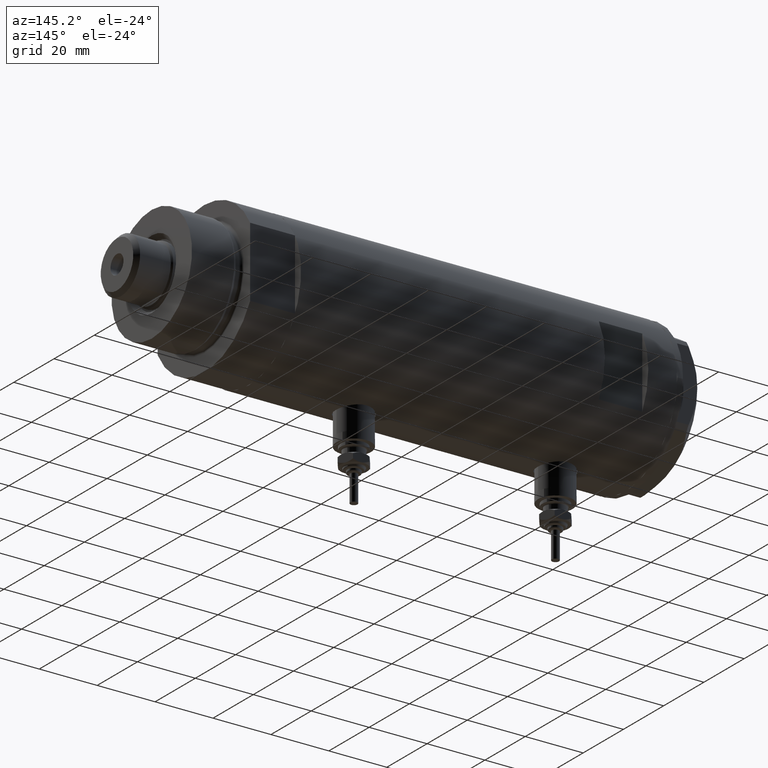
[diagram: clean part render]
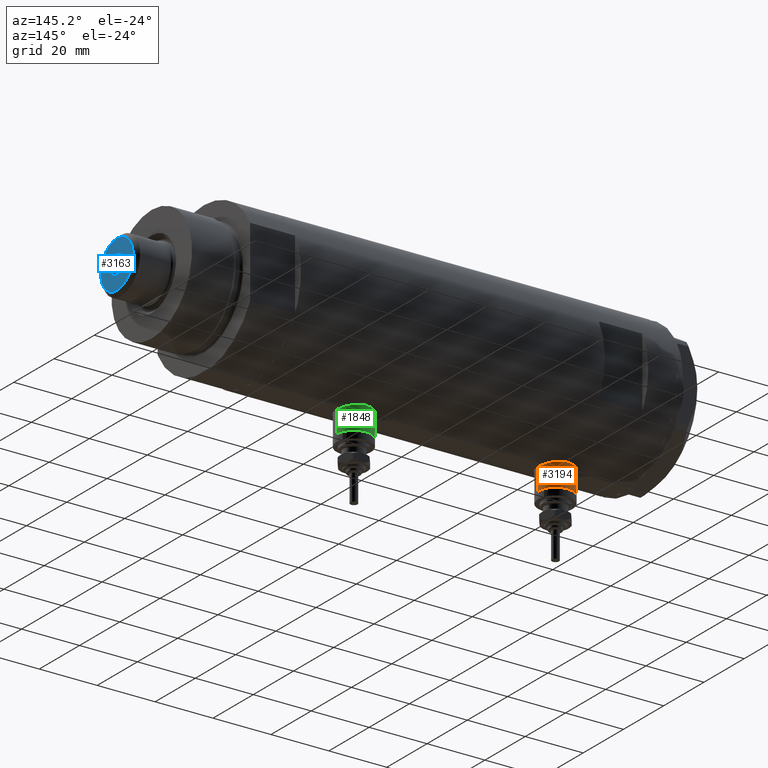
[diagram: same view with three faces highlighted in distinct colors, each labeled with its STEP entity id]
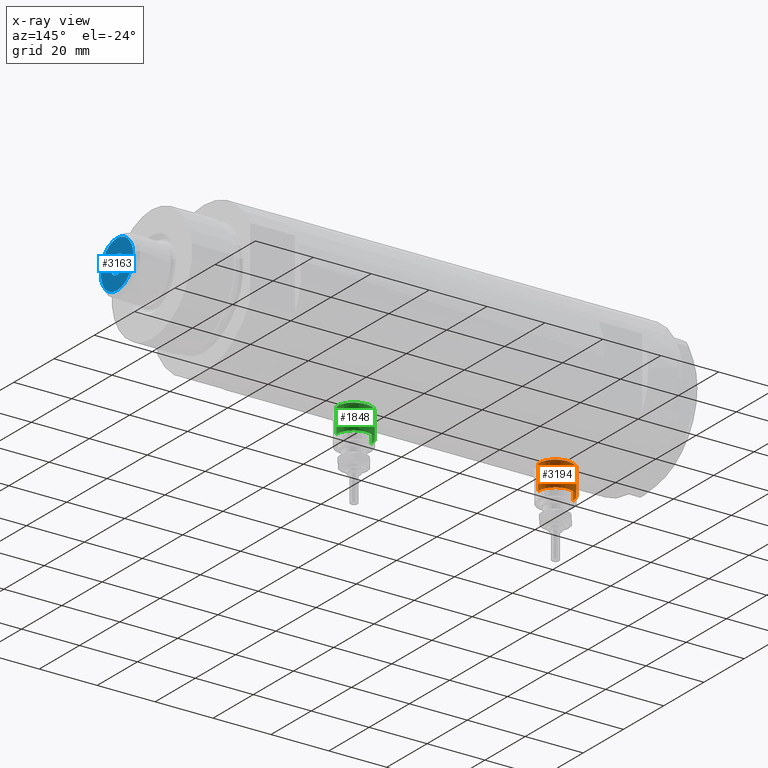
[diagram: x-ray of the same camera — body ghosted, the three highlighted faces saturated]
A machine part, auxiliary view with three faces highlighted in distinct colors.
The next image is the same camera in x-ray (body ghosted, the three faces saturated) — at least one of them is partly hidden behind the body in this view.
Their STEP definitions:

[orange] entity #3194 — the highlighted cylindrical surface (edge-blend (fillet) strip) has radius 6 mm, axis along (0, 0, 1).
#48 = CARTESIAN_POINT ( 'NONE',  ( -33.39999999999999858, 7.347880794884111847E-16, 46.95000000000000284 ) ) ;
#101 = VECTOR ( 'NONE', #5804, 1000.000000000000000 ) ;
#204 = CIRCLE ( 'NONE', #795, 5.999999999999998224 ) ;
#239 = VERTEX_POINT ( 'NONE', #4996 ) ;
#312 = CARTESIAN_POINT ( 'NONE',  ( -24.80000000000000426, 0.000000000000000000, 34.95000000000000995 ) ) ;
#538 = ORIENTED_EDGE ( 'NONE', *, *, #4507, .T. ) ;
#795 = AXIS2_PLACEMENT_3D ( 'NONE', #3727, #1323, #3695 ) ;
#879 = EDGE_LOOP ( 'NONE', ( #3926, #2359, #538, #3023 ) ) ;
#966 = DIRECTION ( 'NONE',  ( 0.000000000000000000, 0.000000000000000000, 1.000000000000000000 ) ) ;
#1323 = DIRECTION ( 'NONE',  ( -1.000000000000000000, 0.000000000000000000, 0.000000000000000000 ) ) ;
#1391 = CIRCLE ( 'NONE', #4403, 5.999999999999998224 ) ;
#1636 = LINE ( 'NONE', #5486, #2840 ) ;
#1827 = EDGE_CURVE ( 'NONE', #3474, #4406, #1636, .T. ) ;
#2359 = ORIENTED_EDGE ( 'NONE', *, *, #3382, .T. ) ;
#2799 = CARTESIAN_POINT ( 'NONE',  ( -33.39999999999999858, 7.347880794884107903E-16, 46.95000000000000284 ) ) ;
#2840 = VECTOR ( 'NONE', #4004, 1000.000000000000000 ) ;
#3023 = ORIENTED_EDGE ( 'NONE', *, *, #1827, .F. ) ;
#3194 = ADVANCED_FACE ( 'NONE', ( #4698 ), #3693, .T. ) ;
#3203 = DIRECTION ( 'NONE',  ( 1.000000000000000000, -0.000000000000000000, -0.000000000000000000 ) ) ;
#3255 = AXIS2_PLACEMENT_3D ( 'NONE', #3655, #3203, #3726 ) ;
#3382 = EDGE_CURVE ( 'NONE', #6104, #239, #3750, .T. ) ;
#3474 = VERTEX_POINT ( 'NONE', #4036 ) ;
#3655 = CARTESIAN_POINT ( 'NONE',  ( -33.39999999999999858, 0.000000000000000000, 40.95000000000000995 ) ) ;
#3693 = CYLINDRICAL_SURFACE ( 'NONE', #3255, 5.999999999999998224 ) ;
#3695 = DIRECTION ( 'NONE',  ( 0.000000000000000000, 0.000000000000000000, 1.000000000000000000 ) ) ;
#3726 = DIRECTION ( 'NONE',  ( 0.000000000000000000, 0.000000000000000000, -1.000000000000000000 ) ) ;
#3727 = CARTESIAN_POINT ( 'NONE',  ( -24.80000000000000426, 0.000000000000000000, 40.95000000000000995 ) ) ;
#3750 = LINE ( 'NONE', #48, #101 ) ;
#3926 = ORIENTED_EDGE ( 'NONE', *, *, #5091, .F. ) ;
#4004 = DIRECTION ( 'NONE',  ( 1.000000000000000000, -0.000000000000000000, -0.000000000000000000 ) ) ;
#4036 = CARTESIAN_POINT ( 'NONE',  ( -33.39999999999999858, 0.000000000000000000, 34.95000000000000995 ) ) ;
#4403 = AXIS2_PLACEMENT_3D ( 'NONE', #5220, #5308, #966 ) ;
#4406 = VERTEX_POINT ( 'NONE', #312 ) ;
#4507 = EDGE_CURVE ( 'NONE', #239, #4406, #204, .T. ) ;
#4698 = FACE_OUTER_BOUND ( 'NONE', #879, .T. ) ;
#4996 = CARTESIAN_POINT ( 'NONE',  ( -24.80000000000000426, 7.347880794884107903E-16, 46.95000000000000284 ) ) ;
#5091 = EDGE_CURVE ( 'NONE', #6104, #3474, #1391, .T. ) ;
#5220 = CARTESIAN_POINT ( 'NONE',  ( -33.39999999999999858, 0.000000000000000000, 40.95000000000000995 ) ) ;
#5308 = DIRECTION ( 'NONE',  ( -1.000000000000000000, 0.000000000000000000, 0.000000000000000000 ) ) ;
#5486 = CARTESIAN_POINT ( 'NONE',  ( -33.39999999999999858, 0.000000000000000000, 34.95000000000000995 ) ) ;
#5804 = DIRECTION ( 'NONE',  ( 1.000000000000000000, -0.000000000000000000, -0.000000000000000000 ) ) ;
#6104 = VERTEX_POINT ( 'NONE', #2799 ) ;

[blue] entity #3163 — the highlighted planar face has unit normal (1, 0, -0).
#221 = EDGE_CURVE ( 'NONE', #3672, #1841, #277, .T. ) ;
#277 = CIRCLE ( 'NONE', #377, 3.249999999999998224 ) ;
#363 = DIRECTION ( 'NONE',  ( 1.000000000000000000, 0.000000000000000000, 0.000000000000000000 ) ) ;
#377 = AXIS2_PLACEMENT_3D ( 'NONE', #749, #2127, #5458 ) ;
#600 = AXIS2_PLACEMENT_3D ( 'NONE', #825, #4659, #363 ) ;
#632 = VERTEX_POINT ( 'NONE', #2134 ) ;
#749 = CARTESIAN_POINT ( 'NONE',  ( 0.000000000000000000, 0.000000000000000000, 151.6000000000000227 ) ) ;
#825 = CARTESIAN_POINT ( 'NONE',  ( 0.000000000000000000, 0.000000000000000000, 151.6000000000000227 ) ) ;
#860 = FACE_OUTER_BOUND ( 'NONE', #5159, .T. ) ;
#1252 = CARTESIAN_POINT ( 'NONE',  ( 0.000000000000000000, 0.000000000000000000, 151.6000000000000227 ) ) ;
#1301 = DIRECTION ( 'NONE',  ( 0.000000000000000000, 0.000000000000000000, 1.000000000000000000 ) ) ;
#1781 = DIRECTION ( 'NONE',  ( 0.000000000000000000, 0.000000000000000000, 1.000000000000000000 ) ) ;
#1841 = VERTEX_POINT ( 'NONE', #5957 ) ;
#2127 = DIRECTION ( 'NONE',  ( -0.000000000000000000, -0.000000000000000000, 1.000000000000000000 ) ) ;
#2134 = CARTESIAN_POINT ( 'NONE',  ( 8.099999999999981881, 1.077689183249669619E-15, 151.6000000000000227 ) ) ;
#2183 = FACE_BOUND ( 'NONE', #4963, .T. ) ;
#2186 = EDGE_CURVE ( 'NONE', #632, #6098, #4599, .T. ) ;
#2310 = CARTESIAN_POINT ( 'NONE',  ( 0.000000000000000000, 0.000000000000000000, 151.6000000000000227 ) ) ;
#2455 = AXIS2_PLACEMENT_3D ( 'NONE', #4275, #2886, #5226 ) ;
#2568 = ORIENTED_EDGE ( 'NONE', *, *, #5064, .T. ) ;
#2810 = CARTESIAN_POINT ( 'NONE',  ( 3.249999999999998224, 0.000000000000000000, 151.6000000000000227 ) ) ;
#2886 = DIRECTION ( 'NONE',  ( -0.000000000000000000, -0.000000000000000000, 1.000000000000000000 ) ) ;
#2932 = ORIENTED_EDGE ( 'NONE', *, *, #2186, .T. ) ;
#3163 = ADVANCED_FACE ( 'NONE', ( #860, #2183 ), #5577, .T. ) ;
#3632 = DIRECTION ( 'NONE',  ( 1.000000000000000000, 0.000000000000000000, 0.000000000000000000 ) ) ;
#3672 = VERTEX_POINT ( 'NONE', #2810 ) ;
#3688 = AXIS2_PLACEMENT_3D ( 'NONE', #1252, #1781, #4085 ) ;
#3916 = CARTESIAN_POINT ( 'NONE',  ( -8.099999999999981881, 0.000000000000000000, 151.6000000000000227 ) ) ;
#4077 = ORIENTED_EDGE ( 'NONE', *, *, #4628, .F. ) ;
#4085 = DIRECTION ( 'NONE',  ( 1.000000000000000000, 0.000000000000000000, -0.000000000000000000 ) ) ;
#4275 = CARTESIAN_POINT ( 'NONE',  ( 0.000000000000000000, 0.000000000000000000, 151.6000000000000227 ) ) ;
#4599 = CIRCLE ( 'NONE', #5004, 8.099999999999981881 ) ;
#4628 = EDGE_CURVE ( 'NONE', #1841, #3672, #5212, .T. ) ;
#4659 = DIRECTION ( 'NONE',  ( 0.000000000000000000, 0.000000000000000000, 1.000000000000000000 ) ) ;
#4963 = EDGE_LOOP ( 'NONE', ( #6161, #4077 ) ) ;
#5004 = AXIS2_PLACEMENT_3D ( 'NONE', #2310, #1301, #3632 ) ;
#5064 = EDGE_CURVE ( 'NONE', #6098, #632, #5630, .T. ) ;
#5159 = EDGE_LOOP ( 'NONE', ( #2568, #2932 ) ) ;
#5212 = CIRCLE ( 'NONE', #2455, 3.249999999999998224 ) ;
#5226 = DIRECTION ( 'NONE',  ( 1.000000000000000000, 0.000000000000000000, 0.000000000000000000 ) ) ;
#5458 = DIRECTION ( 'NONE',  ( 1.000000000000000000, 0.000000000000000000, 0.000000000000000000 ) ) ;
#5577 = PLANE ( 'NONE',  #3688 ) ;
#5630 = CIRCLE ( 'NONE', #600, 8.099999999999981881 ) ;
#5957 = CARTESIAN_POINT ( 'NONE',  ( -3.249999999999998224, 3.980102097228895766E-16, 151.6000000000000227 ) ) ;
#6098 = VERTEX_POINT ( 'NONE', #3916 ) ;
#6161 = ORIENTED_EDGE ( 'NONE', *, *, #221, .F. ) ;

[green] entity #1848 — the highlighted cylindrical surface (edge-blend (fillet) strip) has radius 6 mm, axis along (0, 0, 1).
#25 = EDGE_CURVE ( 'NONE', #4416, #5422, #3663, .T. ) ;
#169 = EDGE_CURVE ( 'NONE', #3562, #1463, #2158, .T. ) ;
#258 = ORIENTED_EDGE ( 'NONE', *, *, #1991, .T. ) ;
#467 = CARTESIAN_POINT ( 'NONE',  ( -33.39999999999999858, 0.000000000000000000, -28.65000000000000924 ) ) ;
#472 = EDGE_LOOP ( 'NONE', ( #1627, #6181, #258, #3359 ) ) ;
#929 = DIRECTION ( 'NONE',  ( 0.000000000000000000, 0.000000000000000000, 1.000000000000000000 ) ) ;
#957 = DIRECTION ( 'NONE',  ( -1.000000000000000000, 0.000000000000000000, 0.000000000000000000 ) ) ;
#1139 = DIRECTION ( 'NONE',  ( 1.000000000000000000, -0.000000000000000000, -0.000000000000000000 ) ) ;
#1463 = VERTEX_POINT ( 'NONE', #6223 ) ;
#1606 = FACE_OUTER_BOUND ( 'NONE', #472, .T. ) ;
#1627 = ORIENTED_EDGE ( 'NONE', *, *, #2687, .F. ) ;
#1699 = CARTESIAN_POINT ( 'NONE',  ( -33.39999999999999858, 7.347880794884121708E-16, -22.65000000000000568 ) ) ;
#1848 = ADVANCED_FACE ( 'NONE', ( #1606 ), #3504, .T. ) ;
#1991 = EDGE_CURVE ( 'NONE', #1463, #5422, #2056, .T. ) ;
#2056 = CIRCLE ( 'NONE', #5403, 6.000000000000001776 ) ;
#2158 = LINE ( 'NONE', #1699, #5701 ) ;
#2166 = CIRCLE ( 'NONE', #5621, 6.000000000000001776 ) ;
#2398 = DIRECTION ( 'NONE',  ( 0.000000000000000000, 0.000000000000000000, 1.000000000000000000 ) ) ;
#2687 = EDGE_CURVE ( 'NONE', #3562, #4416, #2166, .T. ) ;
#3027 = DIRECTION ( 'NONE',  ( 0.000000000000000000, 0.000000000000000000, -1.000000000000000000 ) ) ;
#3042 = AXIS2_PLACEMENT_3D ( 'NONE', #5456, #1139, #3027 ) ;
#3359 = ORIENTED_EDGE ( 'NONE', *, *, #25, .F. ) ;
#3504 = CYLINDRICAL_SURFACE ( 'NONE', #3042, 6.000000000000005329 ) ;
#3562 = VERTEX_POINT ( 'NONE', #3767 ) ;
#3608 = DIRECTION ( 'NONE',  ( -1.000000000000000000, 0.000000000000000000, 0.000000000000000000 ) ) ;
#3609 = DIRECTION ( 'NONE',  ( 1.000000000000000000, -0.000000000000000000, -0.000000000000000000 ) ) ;
#3663 = LINE ( 'NONE', #3759, #4369 ) ;
#3759 = CARTESIAN_POINT ( 'NONE',  ( -33.39999999999999858, 0.000000000000000000, -34.65000000000001279 ) ) ;
#3767 = CARTESIAN_POINT ( 'NONE',  ( -33.39999999999999858, 7.347880794884123680E-16, -22.65000000000000213 ) ) ;
#3826 = CARTESIAN_POINT ( 'NONE',  ( -24.80000000000000426, 0.000000000000000000, -28.65000000000000924 ) ) ;
#4369 = VECTOR ( 'NONE', #5721, 1000.000000000000000 ) ;
#4416 = VERTEX_POINT ( 'NONE', #5545 ) ;
#4559 = CARTESIAN_POINT ( 'NONE',  ( -24.80000000000000426, 0.000000000000000000, -34.65000000000001279 ) ) ;
#5403 = AXIS2_PLACEMENT_3D ( 'NONE', #3826, #3608, #929 ) ;
#5422 = VERTEX_POINT ( 'NONE', #4559 ) ;
#5456 = CARTESIAN_POINT ( 'NONE',  ( -33.39999999999999858, 0.000000000000000000, -28.65000000000000924 ) ) ;
#5545 = CARTESIAN_POINT ( 'NONE',  ( -33.39999999999999858, 0.000000000000000000, -34.65000000000001279 ) ) ;
#5621 = AXIS2_PLACEMENT_3D ( 'NONE', #467, #957, #2398 ) ;
#5701 = VECTOR ( 'NONE', #3609, 1000.000000000000000 ) ;
#5721 = DIRECTION ( 'NONE',  ( 1.000000000000000000, -0.000000000000000000, -0.000000000000000000 ) ) ;
#6181 = ORIENTED_EDGE ( 'NONE', *, *, #169, .T. ) ;
#6223 = CARTESIAN_POINT ( 'NONE',  ( -24.80000000000000426, 7.347880794884123680E-16, -22.65000000000000213 ) ) ;